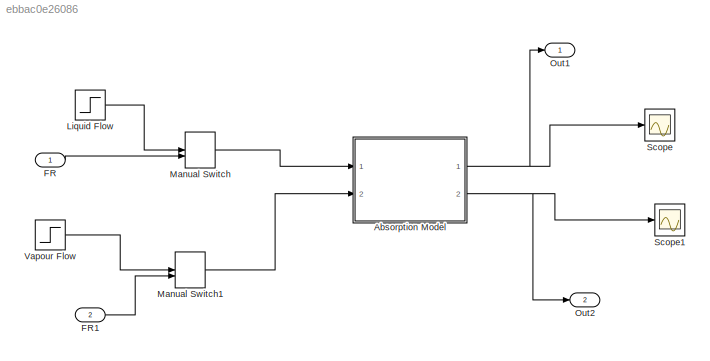
MODEL slx_ebbac0e26086
KIND model
CONFIG AbsTol = auto
CONFIG EnableMultiTasking = off
CONFIG FixedStep = auto
CONFIG MaxStep = auto
CONFIG MinStep = auto
CONFIG RelTol = 1e-3
CONFIG SampleTimeConstraint = Unconstrained
CONFIG SolverName = VariableStepAuto
CONFIG StartTime = 0.0
CONFIG StopTime = 10.0
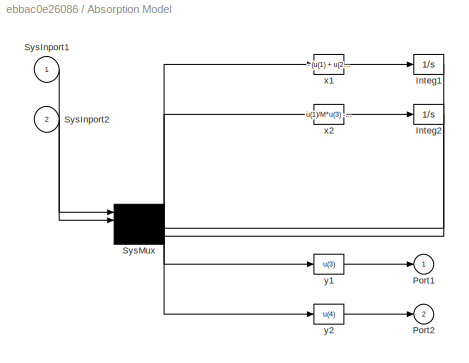
BLOCK [SubSystem] Absorption Model
  OpenFcn = diffeqed
  Ports = [2, 2]
  RequestExecContextInheritance = off
BLOCK [Integrator] Absorption Model/Integ1
  InitialCondition = w_ss
  Ports = [1, 1]
BLOCK [Integrator] Absorption Model/Integ2
  InitialCondition = z_ss
  Ports = [1, 1]
BLOCK [Outport] Absorption Model/Port1
  InitialOutput = 0
BLOCK [Outport] Absorption Model/Port2
  Port = 2
BLOCK [Inport] Absorption Model/SysInport1
BLOCK [Inport] Absorption Model/SysInport2
  Port = 2
BLOCK [Mux] Absorption Model/SysMux
  Ports = [4, 1]
BLOCK [Fcn] Absorption Model/x1
  Expr = - (u(1) + u(2)*a)*u(3)/M + u(2)*a/M*u(4)
BLOCK [Fcn] Absorption Model/x2
  Expr = u(1)/M*u(3) - (u(1) + u(2)*a)*u(4)/M + u(2)/M*zf
BLOCK [Fcn] Absorption Model/y1
  Expr = u(3)
BLOCK [Fcn] Absorption Model/y2
  Expr = u(4)
BLOCK [Inport] FR
BLOCK [Inport] FR1
  Port = 2
BLOCK [Step] Liquid Flow
  After = Lss*1.05
  Before = Lss
  SampleTime = 0
  Time = 0
BLOCK [ManualSwitch] Manual Switch
  CurrentSetting = 0
BLOCK [ManualSwitch] Manual Switch1
  CurrentSetting = 0
BLOCK [Outport] Out1
BLOCK [Outport] Out2
  Port = 2
BLOCK [Scope] Scope
  Floating = off
  NumInputPorts = 1
  Ports = [1]
  ScopeSpecificationString = Simulink.scopes.TimeScopeBlockCfg('CurrentConfiguration', extmgr.ConfigurationSet(extmgr.Configuration('Core','General UI',true),extmgr.Configuration('Core','Source UI',true),extmgr.Configuration('Sources','WiredSimulink',true),extmgr.Configuration('Visuals','Time Domain',true,'SerializedDisplays',{struct('MinYLimReal','0.03605','MaxYLimReal','0.03906','YLabelReal','','MinYLimMag','0.03605','MaxYL...<+1399ch>
BLOCK [Scope] Scope1
  Floating = off
  NumInputPorts = 1
  Ports = [1]
  ScopeSpecificationString = Simulink.scopes.TimeScopeBlockCfg('CurrentConfiguration', extmgr.ConfigurationSet(extmgr.Configuration('Core','General UI',true),extmgr.Configuration('Core','Source UI',true),extmgr.Configuration('Sources','WiredSimulink',true,'DataLoggingVariableName','ScopeData1'),extmgr.Configuration('Visuals','Time Domain',true,'SerializedDisplays',{struct('MinYLimReal','0.09699','MaxYLimReal','0.1012','YLabel...<+1397ch>
BLOCK [Step] Vapour Flow
  After = Vss
  Before = Vss
  SampleTime = 0
  Time = 0
LINE Absorption Model/Integ1:1 -> Absorption Model/SysMux:3
LINE Absorption Model/Integ2:1 -> Absorption Model/SysMux:4
LINE Absorption Model/SysInport1:1 -> Absorption Model/SysMux:1
LINE Absorption Model/SysInport2:1 -> Absorption Model/SysMux:2
NET Absorption Model/SysMux:1 -> Absorption Model/x1:1, Absorption Model/x2:1, Absorption Model/y1:1, Absorption Model/y2:1
LINE Absorption Model/x1:1 -> Absorption Model/Integ1:1
LINE Absorption Model/x2:1 -> Absorption Model/Integ2:1
LINE Absorption Model/y1:1 -> Absorption Model/Port1:1
LINE Absorption Model/y2:1 -> Absorption Model/Port2:1
NET Absorption Model:1 -> Out1:1, Scope:1
NET Absorption Model:2 -> Out2:1, Scope1:1
LINE FR1:1 -> Manual Switch1:2
LINE FR:1 -> Manual Switch:2
LINE Liquid Flow:1 -> Manual Switch:1
LINE Manual Switch1:1 -> Absorption Model:2
LINE Manual Switch:1 -> Absorption Model:1
LINE Vapour Flow:1 -> Manual Switch1:1
note: NET lines group one-source signal fan-out (src -> all destinations, sorted); 1:1 wires keep LINE
